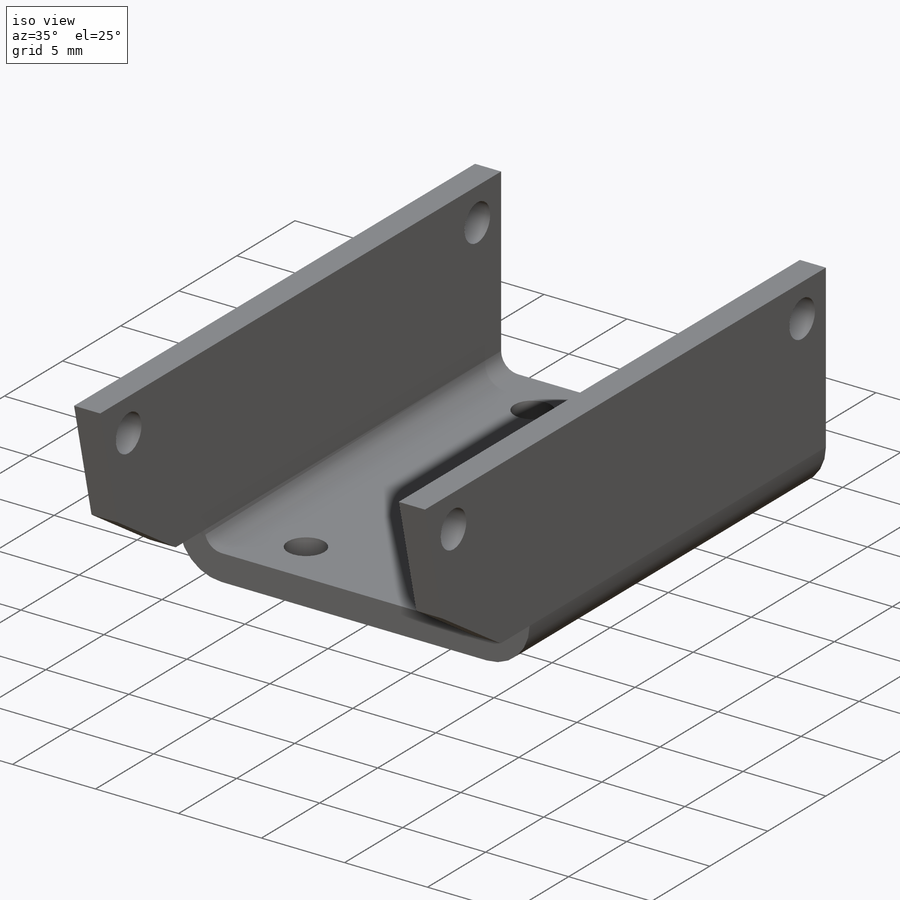
[diagram: iso view]
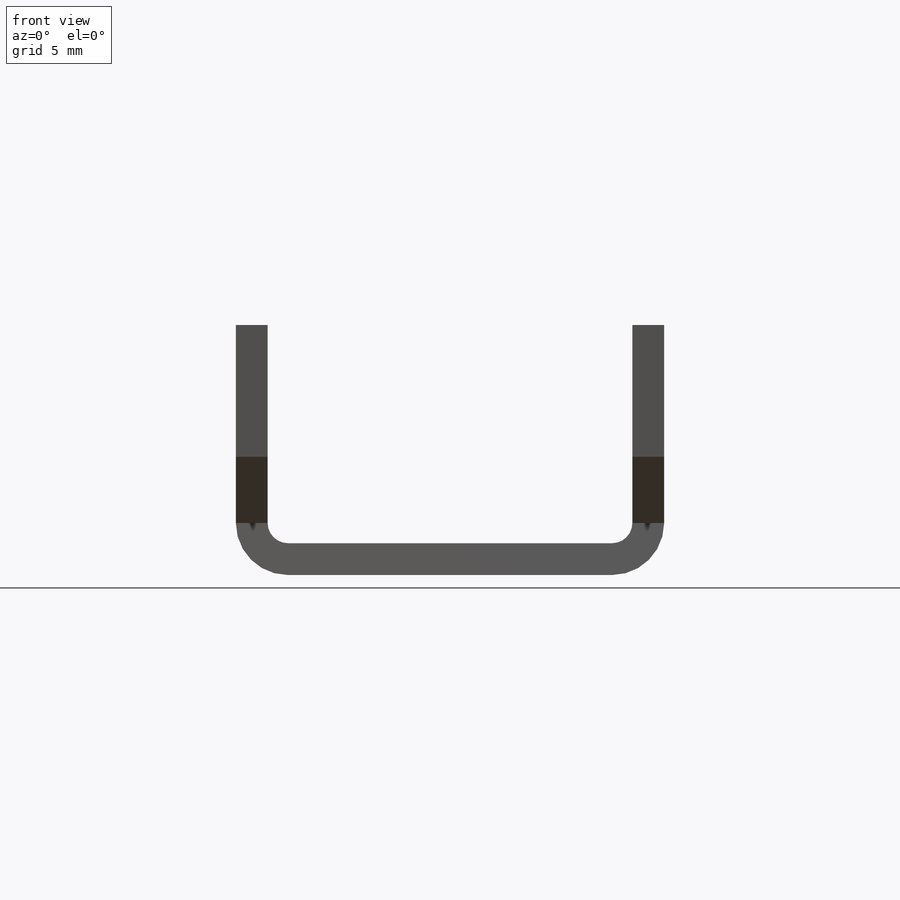
[diagram: front view]
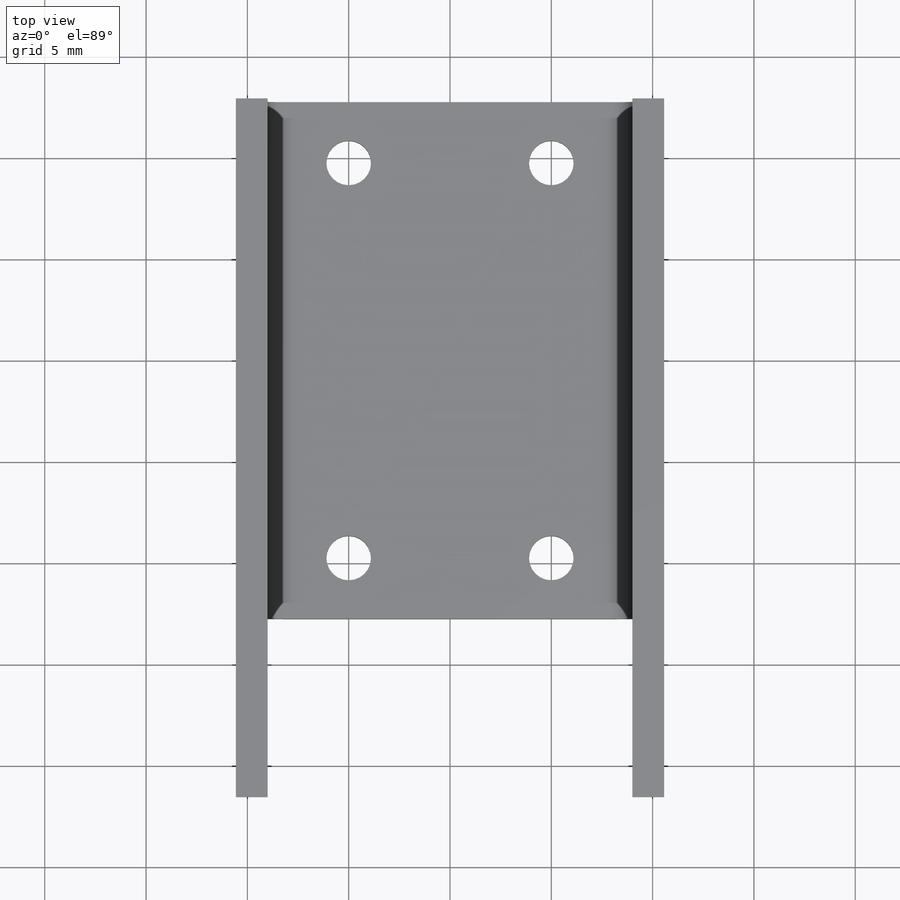
[diagram: top view]
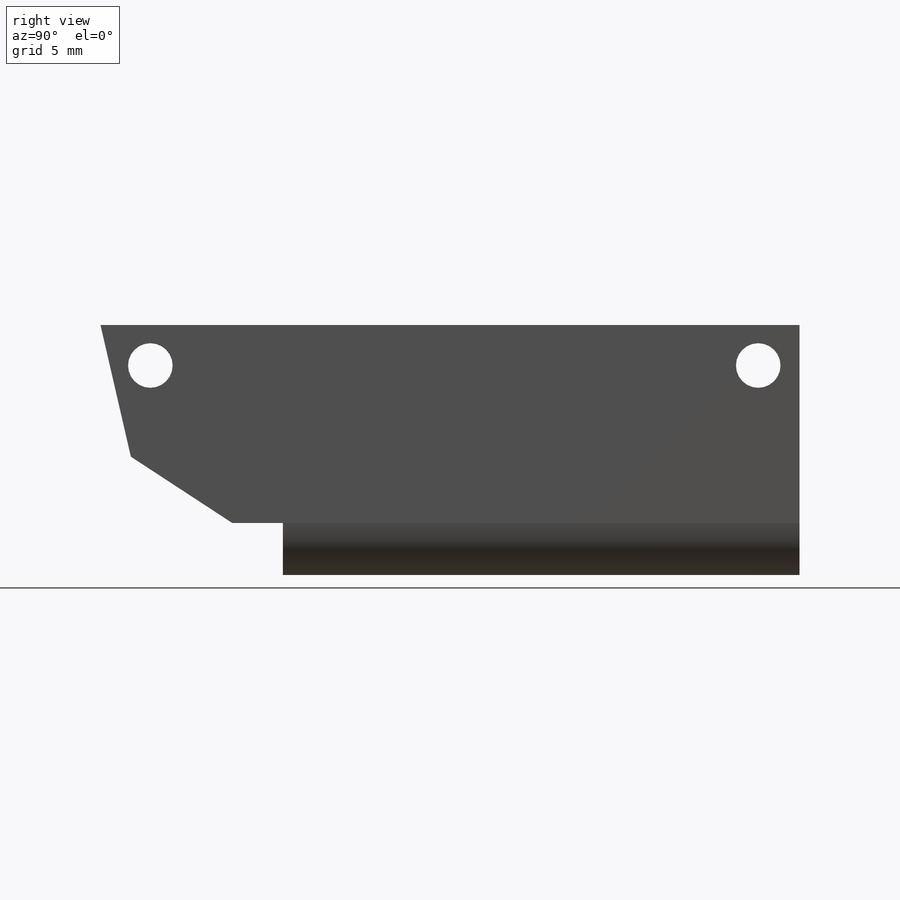
[diagram: right view]
SOLIDWORKS PART (.sldprt)
format: sldprt  version: not decoded by parser v0  size: 456,704 bytes
history: native  units: mm
features: sketch x26, sheet_metal_op x11, cut_extrude x2, material x1, extrude x1 + 9 further entries (+13 scaffold rows collapsed; 9 parser-record rows omitted)
feature tree (72):
  scaffold x13  (default folders/planes/origin — collapsed)
  material  "Material <not specified>"
  sketch  "Sketch1"  dims[c1.D3=1.0mm c1.D4=1.0mm c1.D5=1.0mm c1.D6=1.0mm c1.D11=2.0mm c1.D12=2.0mm c1.D13=2.0mm c1.D14=2.0mm c2.D3=2.2mm c2.D4=2.2mm c2.D5=2.2mm c2.D6=2.2mm c2.D1=25.5mm c2.D2=16.0mm c2.D7=2.0mm c2.D8=2.0mm c2.D9=2.0mm c2.D10=2.0mm c3.D1=1.0mm c3.D2=0.5 c3.D3=0.0mm c3.D6=500.0mm]
  sheet_metal_op  "Base-Flange1"
  sketch  "Sketch19"  dims[c1.D1=1.0mm c1.D4=90.0deg c1.D5=1.0 c1.D8=1.0mm c1.D9=1.0mm c2.D1=1.0mm c2.D2=500.0mm c2.D3=0.0mm c2.D6=10.0mm c2.D7=12.34mm c2.Edge-Flange3=0.0]
  sketch  "Sketch22"
  sheet_metal_op  "EdgeBend2"
  sketch  "Sketch23"
  extrude  "Boss-Extrude1"  Depth=9mm
  sketch  "Sketch24"  dims[c1.D1=10.48mm c1.D2=10.48mm c1.D3=10.48mm c2.D1=3.0mm c2.D2=5.0mm c2.D3=6.5mm c2.D4=1.5mm]
  cut_extrude  "Cut-Extrude1"  [1 undecoded]
  sketch  "Sketch29"  dims[D2=2.0mm D3=2.0mm D6=2.2mm D7=2.2mm D1=30.0mm D4=1.0mm D5=1.0mm]
  cut_extrude  "Cut-Extrude2"  [1 undecoded]
  sketch  "Bend-Lines1"
  sketch  "Bounding-Box1"
  sheet_metal_op  "Sheet-Metal1"
  "Flat-Pattern1"
  sketch  "Bend-Lines2"
  sketch  "Bounding-Box2"
  parser-record x9  (decoder bookkeeping rows leaked as tree rows — omitted from the tree; the rows remain in map.json)
  sheet_metal_op  "Sheet-Metal2"
  "Flat-Pattern1"
  sketch  "Bend-Lines2"
  sketch  "Bounding-Box2"
  sheet_metal_op  "Sheet-Metal3"
  "Flat-Pattern1"
  sketch  "Bend-Lines2"
  sketch  "Bounding-Box2"
  sheet_metal_op  "Sheet-Metal4"
  "Flat-Pattern1"
  sketch  "Bend-Lines2"
  sketch  "Bounding-Box2"
  sheet_metal_op  "Sheet-Metal5"
  "Flat-Pattern1"
  sketch  "Bend-Lines2"
  sketch  "Bounding-Box2"
  sheet_metal_op  "Sheet-Metal7"
  "Flat-Pattern1"
  sketch  "Bend-Lines2"
  sketch  "Bounding-Box2"
  sheet_metal_op  "Sheet-Metal8"
  "Flat-Pattern8"
  sketch  "Bend-Lines3"
  sketch  "Bounding-Box3"
  sheet_metal_op  "Sheet-Metal9"
  "Flat-Pattern9"
  sketch  "Bend-Lines4"
  sketch  "Bounding-Box4"
  sheet_metal_op  "Sheet-Metal10"
  "Flat-Pattern1"
  sketch  "Bend-Lines5"
  sketch  "Bounding-Box5"
decode coverage: 5 of 40 modeling features carry decoded parameters; 9 rows unclassified (native names shown)
note: 2 parameter values undecoded
note: suppression state not decoded; provenance and decode notes live in map.json
